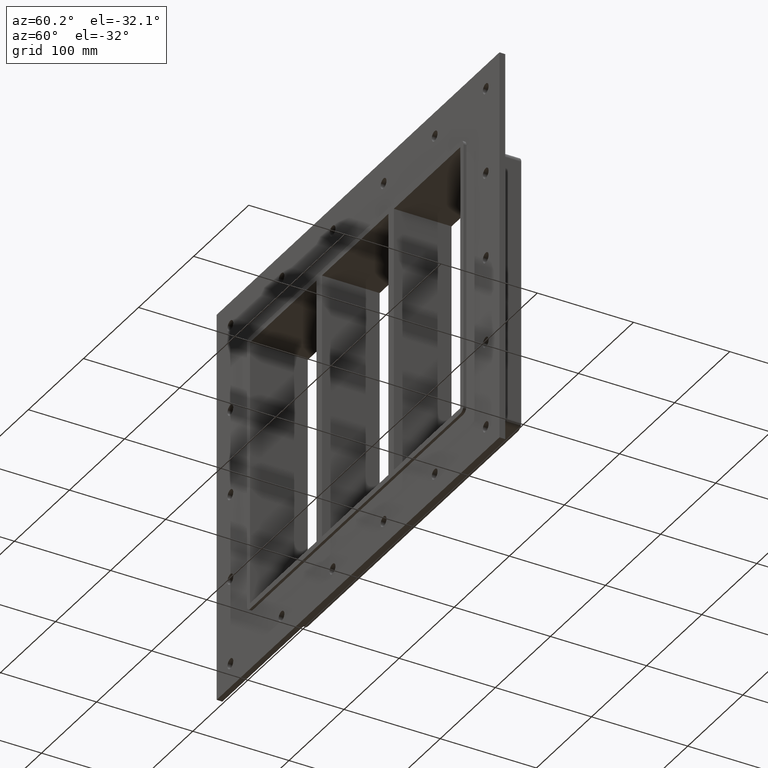
[diagram: clean part render]
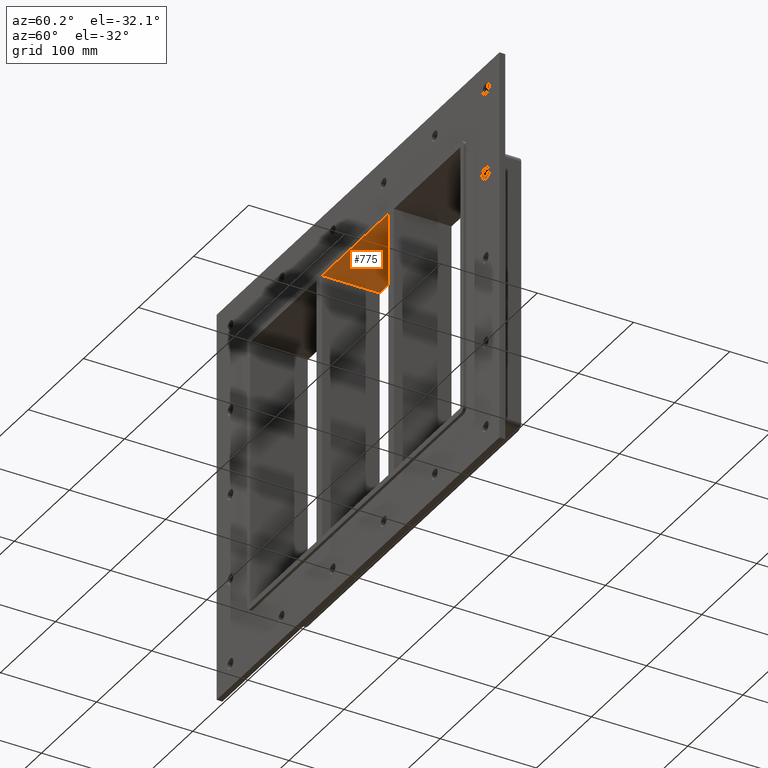
[diagram: same view with one face highlighted and labeled with its STEP entity id]
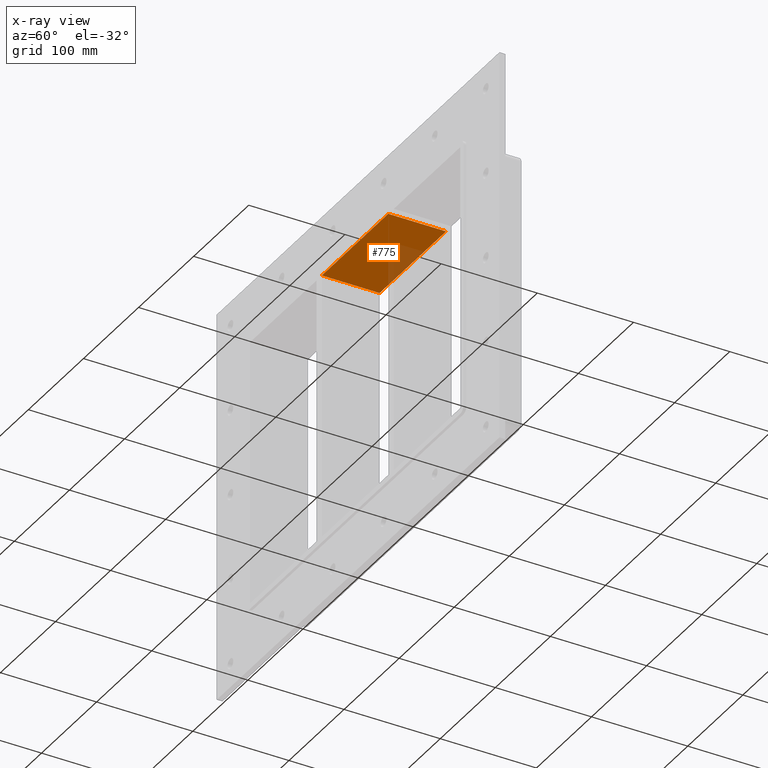
[diagram: x-ray of the same camera — body ghosted, the highlighted face saturated]
A machine part, auxiliary view. The second image highlights one B-rep face of the part: STEP entity #775.
The next image is the same camera in x-ray: the body ghosted, the highlighted face saturated — about 16% of this face is hidden behind the body in this view.
In plain terms, the highlighted planar face has unit normal (0, 0, 1).
Its self-contained STEP definition (entity closure, byte-faithful):
#579=CARTESIAN_POINT('',(60.2499999999986,-3.0,139.0));
#580=VERTEX_POINT('',#579);
#587=CARTESIAN_POINT('',(60.2499999999986,57.0,139.0));
#588=VERTEX_POINT('',#587);
#589=CARTESIAN_POINT('',(60.2499999999986,57.000000000000007,139.0));
#590=DIRECTION('',(0.0,-1.0,0.0));
#591=VECTOR('',#590,60.000000000000007);
#592=LINE('',#589,#591);
#593=EDGE_CURVE('',#588,#580,#592,.T.);
#745=CARTESIAN_POINT('',(-190.75000000000003,0.0,139.0));
#746=DIRECTION('',(0.0,0.0,1.0));
#747=DIRECTION('',(1.0,0.0,0.0));
#748=AXIS2_PLACEMENT_3D('',#745,#746,#747);
#749=PLANE('',#748);
#750=ORIENTED_EDGE('',*,*,#593,.T.);
#751=CARTESIAN_POINT('',(-60.249999999996362,-3.0,139.0));
#752=VERTEX_POINT('',#751);
#753=CARTESIAN_POINT('',(-60.249999999996362,-3.0,139.0));
#754=DIRECTION('',(1.0,0.0,0.0));
#755=VECTOR('',#754,120.49999999999496);
#756=LINE('',#753,#755);
#757=EDGE_CURVE('',#752,#580,#756,.T.);
#758=ORIENTED_EDGE('',*,*,#757,.F.);
#759=CARTESIAN_POINT('',(-60.249999999996362,57.0,139.0));
#760=VERTEX_POINT('',#759);
#761=CARTESIAN_POINT('',(-60.249999999996362,-3.0,139.0));
#762=DIRECTION('',(0.0,1.0,0.0));
#763=VECTOR('',#762,60.000000000000007);
#764=LINE('',#761,#763);
#765=EDGE_CURVE('',#752,#760,#764,.T.);
#766=ORIENTED_EDGE('',*,*,#765,.T.);
#767=CARTESIAN_POINT('',(60.249999999998593,57.0,139.0));
#768=DIRECTION('',(-1.0,0.0,0.0));
#769=VECTOR('',#768,120.49999999999496);
#770=LINE('',#767,#769);
#771=EDGE_CURVE('',#588,#760,#770,.T.);
#772=ORIENTED_EDGE('',*,*,#771,.F.);
#773=EDGE_LOOP('',(#750,#758,#766,#772));
#774=FACE_OUTER_BOUND('',#773,.T.);
#775=ADVANCED_FACE('',(#774),#749,.F.);